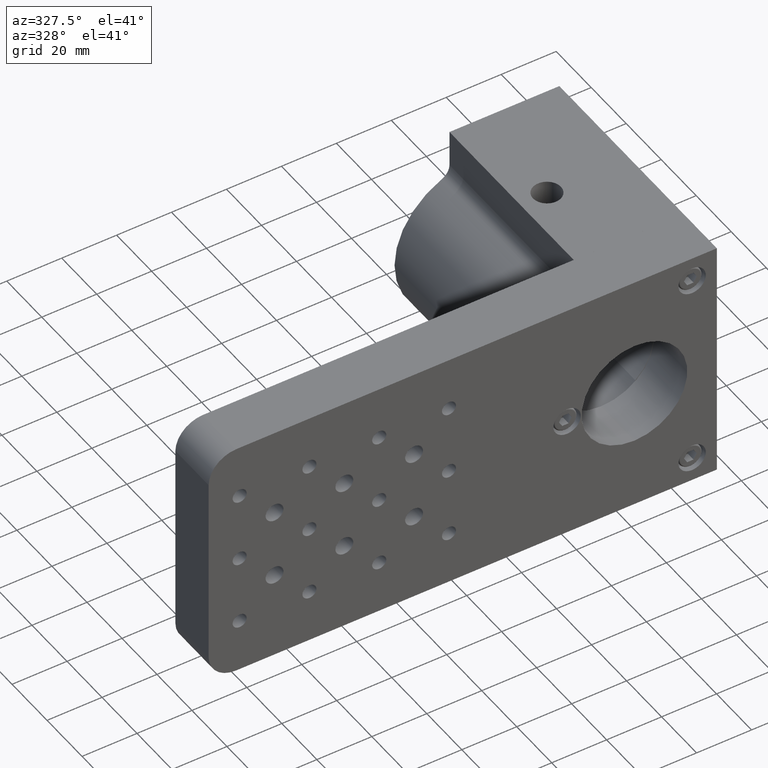
[diagram: clean part render]
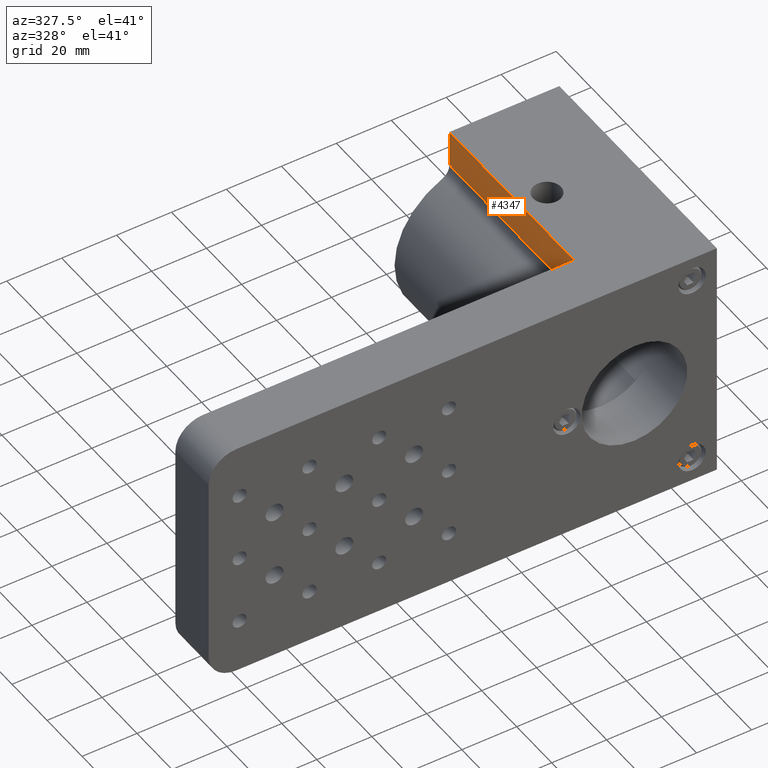
[diagram: same view with one face highlighted and labeled with its STEP entity id]
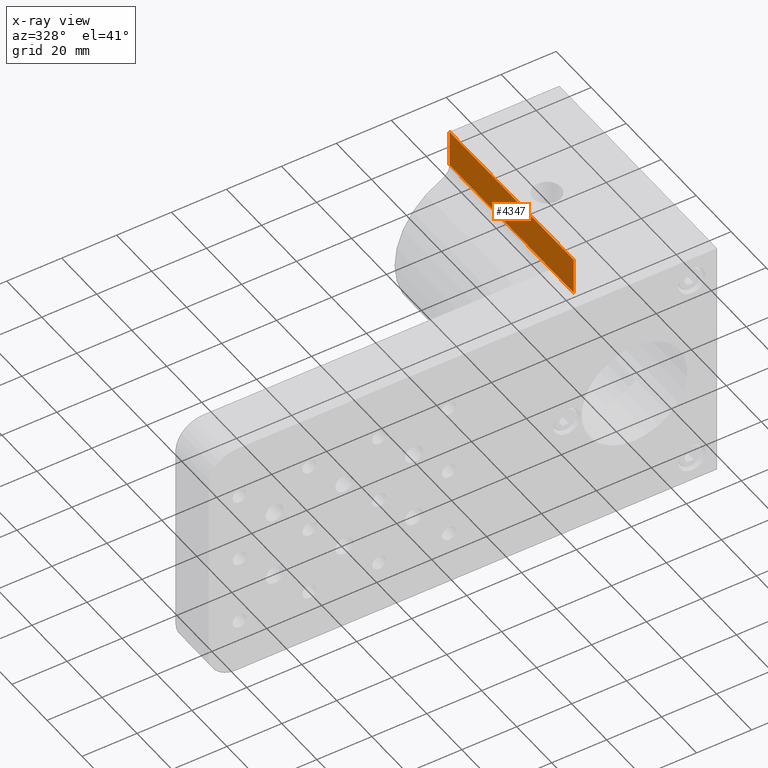
[diagram: x-ray of the same camera — body ghosted, the highlighted face saturated]
A machine part, auxiliary view. The second image highlights one B-rep face of the part: STEP entity #4347.
The next image is the same camera in x-ray: the body ghosted, the highlighted face saturated — about 0% of this face is hidden behind the body in this view.
In plain terms, the highlighted planar face has unit normal (1, 0, -0).
Its self-contained STEP definition (entity closure, byte-faithful):
#97 = CARTESIAN_POINT ( 'NONE',  ( 134.3969387244474400, 104.2146020396520600, 175.4386705269637300 ) ) ;
#173 = PLANE ( 'NONE',  #1121 ) ;
#184 = CARTESIAN_POINT ( 'NONE',  ( 134.3969387244474400, 175.2146020396520500, 172.1001651727419200 ) ) ;
#320 = VECTOR ( 'NONE', #1709, 1000.000000000000000 ) ;
#345 = VERTEX_POINT ( 'NONE', #1814 ) ;
#408 = LINE ( 'NONE', #953, #4324 ) ;
#733 = VECTOR ( 'NONE', #4678, 1000.000000000000000 ) ;
#840 = VERTEX_POINT ( 'NONE', #855 ) ;
#855 = CARTESIAN_POINT ( 'NONE',  ( 134.3969387244474400, 175.2146020396520500, 175.4386705269637300 ) ) ;
#869 = CARTESIAN_POINT ( 'NONE',  ( 134.3969387244474700, 175.2146020396520500, 188.8158939252802800 ) ) ;
#903 = VERTEX_POINT ( 'NONE', #2551 ) ;
#953 = CARTESIAN_POINT ( 'NONE',  ( 134.3969387244474400, 104.2146020396520600, 175.4386705269637300 ) ) ;
#1032 = EDGE_CURVE ( 'NONE', #3677, #345, #2141, .T. ) ;
#1121 = AXIS2_PLACEMENT_3D ( 'NONE', #184, #4342, #5172 ) ;
#1637 = LINE ( 'NONE', #869, #733 ) ;
#1709 = DIRECTION ( 'NONE',  ( 1.037779149002632100E-016, 0.0000000000000000000, 1.000000000000000000 ) ) ;
#1814 = CARTESIAN_POINT ( 'NONE',  ( 134.3969387244474700, 104.2146020396520600, 188.8158939252802800 ) ) ;
#1968 = CARTESIAN_POINT ( 'NONE',  ( 134.3969387244474400, 104.2146020396520600, 172.1001651727419200 ) ) ;
#1988 = FACE_OUTER_BOUND ( 'NONE', #4070, .T. ) ;
#2141 = LINE ( 'NONE', #1968, #2788 ) ;
#2206 = ORIENTED_EDGE ( 'NONE', *, *, #3125, .T. ) ;
#2395 = ORIENTED_EDGE ( 'NONE', *, *, #5127, .F. ) ;
#2551 = CARTESIAN_POINT ( 'NONE',  ( 134.3969387244474700, 175.2146020396520500, 188.8158939252802800 ) ) ;
#2788 = VECTOR ( 'NONE', #5281, 1000.000000000000000 ) ;
#3125 = EDGE_CURVE ( 'NONE', #840, #3677, #408, .T. ) ;
#3130 = ORIENTED_EDGE ( 'NONE', *, *, #3427, .F. ) ;
#3379 = CARTESIAN_POINT ( 'NONE',  ( 134.3969387244474400, 175.2146020396520500, 172.1001651727419200 ) ) ;
#3427 = EDGE_CURVE ( 'NONE', #903, #345, #1637, .T. ) ;
#3677 = VERTEX_POINT ( 'NONE', #97 ) ;
#3861 = DIRECTION ( 'NONE',  ( -0.0000000000000000000, -1.000000000000000000, -0.0000000000000000000 ) ) ;
#4070 = EDGE_LOOP ( 'NONE', ( #2395, #2206, #5189, #3130 ) ) ;
#4324 = VECTOR ( 'NONE', #3861, 1000.000000000000000 ) ;
#4342 = DIRECTION ( 'NONE',  ( 1.000000000000000000, 0.0000000000000000000, -1.037779149002632100E-016 ) ) ;
#4347 = ADVANCED_FACE ( 'NONE', ( #1988 ), #173, .F. ) ;
#4430 = LINE ( 'NONE', #3379, #320 ) ;
#4678 = DIRECTION ( 'NONE',  ( -0.0000000000000000000, -1.000000000000000000, -0.0000000000000000000 ) ) ;
#5127 = EDGE_CURVE ( 'NONE', #840, #903, #4430, .T. ) ;
#5172 = DIRECTION ( 'NONE',  ( -1.037779149002632100E-016, 0.0000000000000000000, -1.000000000000000000 ) ) ;
#5189 = ORIENTED_EDGE ( 'NONE', *, *, #1032, .T. ) ;
#5281 = DIRECTION ( 'NONE',  ( 1.037779149002632100E-016, 0.0000000000000000000, 1.000000000000000000 ) ) ;